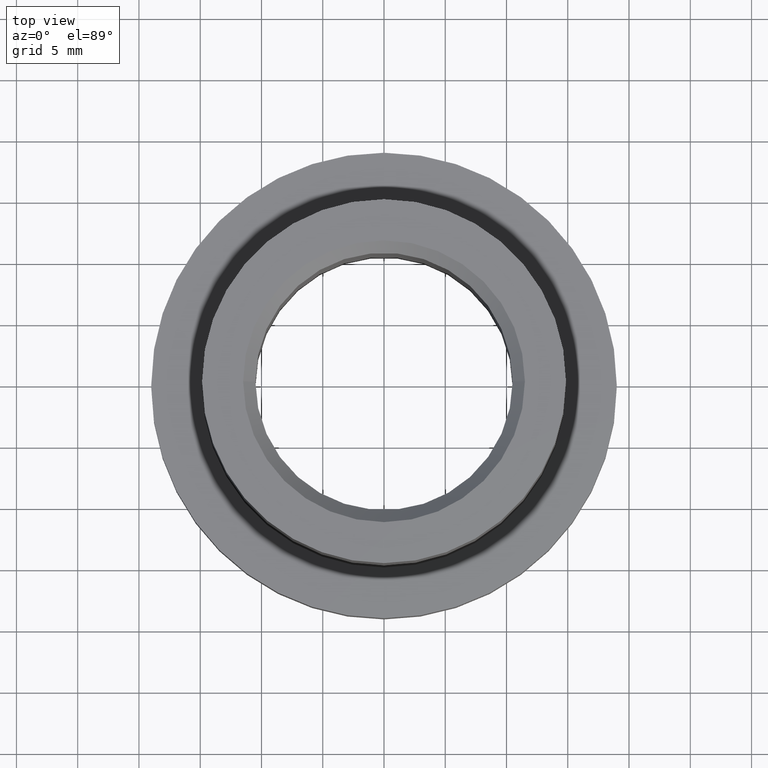
[diagram: clean part render]
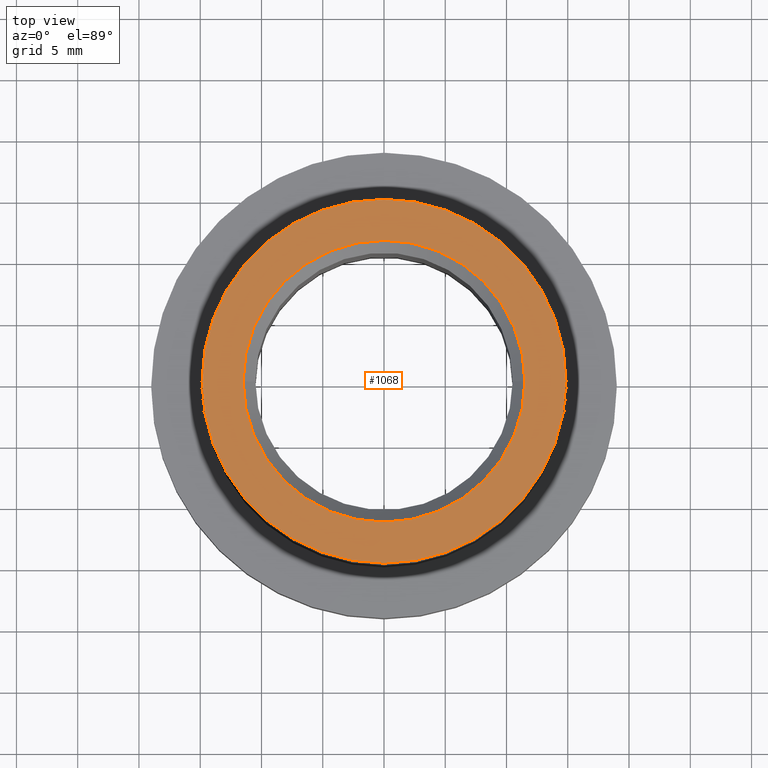
[diagram: same view with one face highlighted and labeled with its STEP entity id]
A machine part, top view. The second image highlights one B-rep face of the part: STEP entity #1068.
In plain terms, the highlighted planar face has unit normal (0, 0, -1).
Its self-contained STEP definition (entity closure, byte-faithful):
#97 = VERTEX_POINT ( 'NONE', #9753 ) ;
#144 = VERTEX_POINT ( 'NONE', #2891 ) ;
#911 = VERTEX_POINT ( 'NONE', #8747 ) ;
#915 = AXIS2_PLACEMENT_3D ( 'NONE', #7744, #6568, #1437 ) ;
#1068 = ADVANCED_FACE ( 'NONE', ( #12102, #1288 ), #2873, .F. ) ;
#1075 = VERTEX_POINT ( 'NONE', #10388 ) ;
#1223 = DIRECTION ( 'NONE',  ( 0.000000000000000000, 0.000000000000000000, -1.000000000000000000 ) ) ;
#1288 = FACE_OUTER_BOUND ( 'NONE', #3622, .T. ) ;
#1437 = DIRECTION ( 'NONE',  ( 1.000000000000000000, 0.000000000000000000, 0.000000000000000000 ) ) ;
#2026 = DIRECTION ( 'NONE',  ( 0.000000000000000000, 0.000000000000000000, -1.000000000000000000 ) ) ;
#2873 = PLANE ( 'NONE',  #6996 ) ;
#2891 = CARTESIAN_POINT ( 'NONE',  ( 14.84999999999999787, 0.000000000000000000, 13.00000000000000000 ) ) ;
#3595 = EDGE_CURVE ( 'NONE', #1075, #911, #13341, .T. ) ;
#3622 = EDGE_LOOP ( 'NONE', ( #7083, #5512 ) ) ;
#3734 = EDGE_CURVE ( 'NONE', #97, #144, #4029, .T. ) ;
#3937 = DIRECTION ( 'NONE',  ( -1.000000000000000000, 0.000000000000000000, 0.000000000000000000 ) ) ;
#4029 = CIRCLE ( 'NONE', #915, 14.84999999999999787 ) ;
#4304 = AXIS2_PLACEMENT_3D ( 'NONE', #10307, #10183, #3937 ) ;
#4527 = CIRCLE ( 'NONE', #8327, 14.84999999999999787 ) ;
#5467 = EDGE_CURVE ( 'NONE', #144, #97, #4527, .T. ) ;
#5512 = ORIENTED_EDGE ( 'NONE', *, *, #3734, .T. ) ;
#5556 = ORIENTED_EDGE ( 'NONE', *, *, #7133, .T. ) ;
#6143 = CARTESIAN_POINT ( 'NONE',  ( 0.000000000000000000, 0.000000000000000000, 13.00000000000000000 ) ) ;
#6568 = DIRECTION ( 'NONE',  ( -0.000000000000000000, -0.000000000000000000, 1.000000000000000000 ) ) ;
#6996 = AXIS2_PLACEMENT_3D ( 'NONE', #11239, #2026, #13403 ) ;
#7083 = ORIENTED_EDGE ( 'NONE', *, *, #5467, .T. ) ;
#7096 = DIRECTION ( 'NONE',  ( -0.000000000000000000, -0.000000000000000000, 1.000000000000000000 ) ) ;
#7133 = EDGE_CURVE ( 'NONE', #911, #1075, #8748, .T. ) ;
#7516 = CARTESIAN_POINT ( 'NONE',  ( 0.000000000000000000, 0.000000000000000000, 13.00000000000000000 ) ) ;
#7744 = CARTESIAN_POINT ( 'NONE',  ( 0.000000000000000000, 0.000000000000000000, 13.00000000000000000 ) ) ;
#7820 = ORIENTED_EDGE ( 'NONE', *, *, #3595, .T. ) ;
#8327 = AXIS2_PLACEMENT_3D ( 'NONE', #6143, #7096, #12381 ) ;
#8567 = DIRECTION ( 'NONE',  ( -1.000000000000000000, 0.000000000000000000, 0.000000000000000000 ) ) ;
#8747 = CARTESIAN_POINT ( 'NONE',  ( -11.50000000000000355, 1.408343819019456570E-15, 13.00000000000000000 ) ) ;
#8748 = CIRCLE ( 'NONE', #4304, 11.50000000000000355 ) ;
#9753 = CARTESIAN_POINT ( 'NONE',  ( -14.84999999999999787, 1.818600496733819553E-15, 13.00000000000000000 ) ) ;
#10183 = DIRECTION ( 'NONE',  ( 0.000000000000000000, 0.000000000000000000, -1.000000000000000000 ) ) ;
#10307 = CARTESIAN_POINT ( 'NONE',  ( 0.000000000000000000, 0.000000000000000000, 13.00000000000000000 ) ) ;
#10388 = CARTESIAN_POINT ( 'NONE',  ( 11.50000000000000355, 0.000000000000000000, 13.00000000000000000 ) ) ;
#10489 = EDGE_LOOP ( 'NONE', ( #7820, #5556 ) ) ;
#11239 = CARTESIAN_POINT ( 'NONE',  ( 0.000000000000000000, 4.999999999999998224, 13.00000000000000000 ) ) ;
#12102 = FACE_BOUND ( 'NONE', #10489, .T. ) ;
#12381 = DIRECTION ( 'NONE',  ( 1.000000000000000000, 0.000000000000000000, 0.000000000000000000 ) ) ;
#12425 = AXIS2_PLACEMENT_3D ( 'NONE', #7516, #1223, #8567 ) ;
#13341 = CIRCLE ( 'NONE', #12425, 11.50000000000000355 ) ;
#13403 = DIRECTION ( 'NONE',  ( -1.000000000000000000, 0.000000000000000000, -0.000000000000000000 ) ) ;